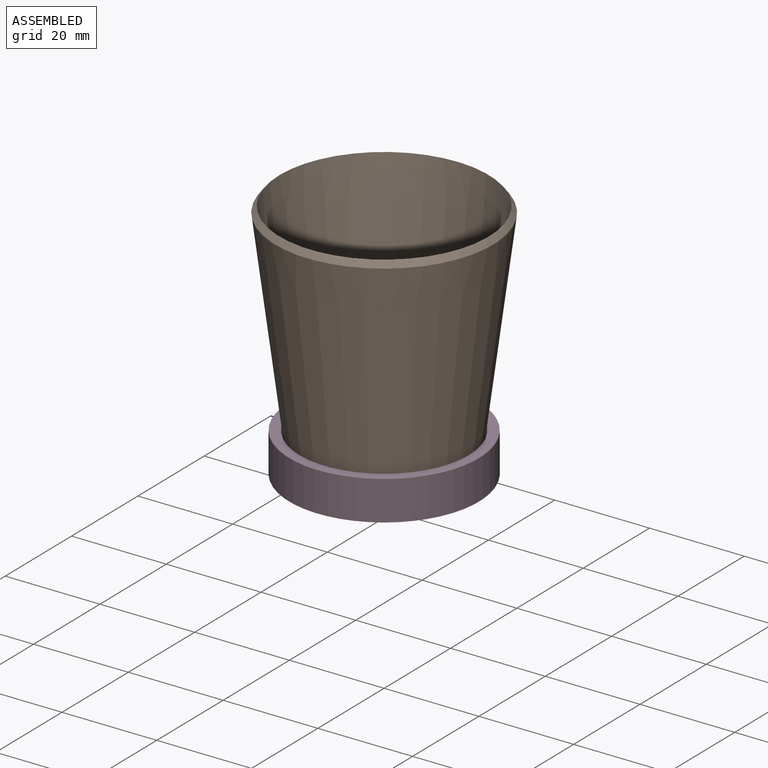
[diagram: assembled view]
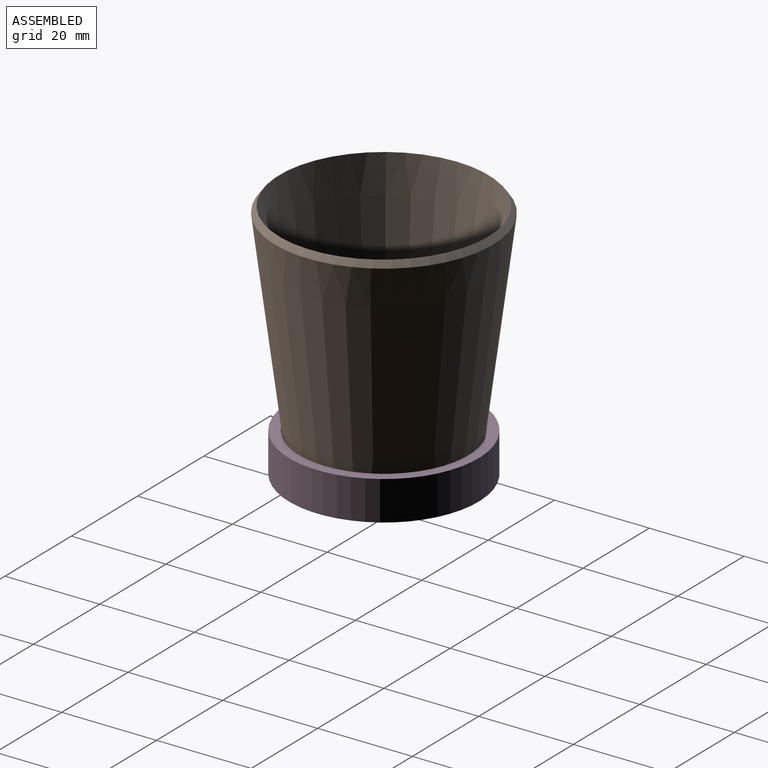
[diagram: assembled view, second angle]
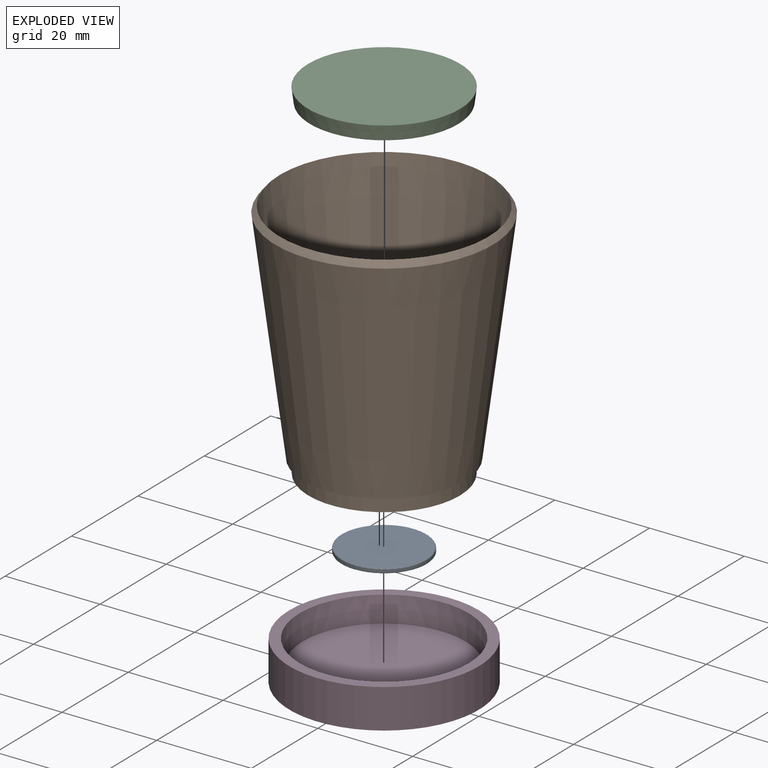
[diagram: exploded view]
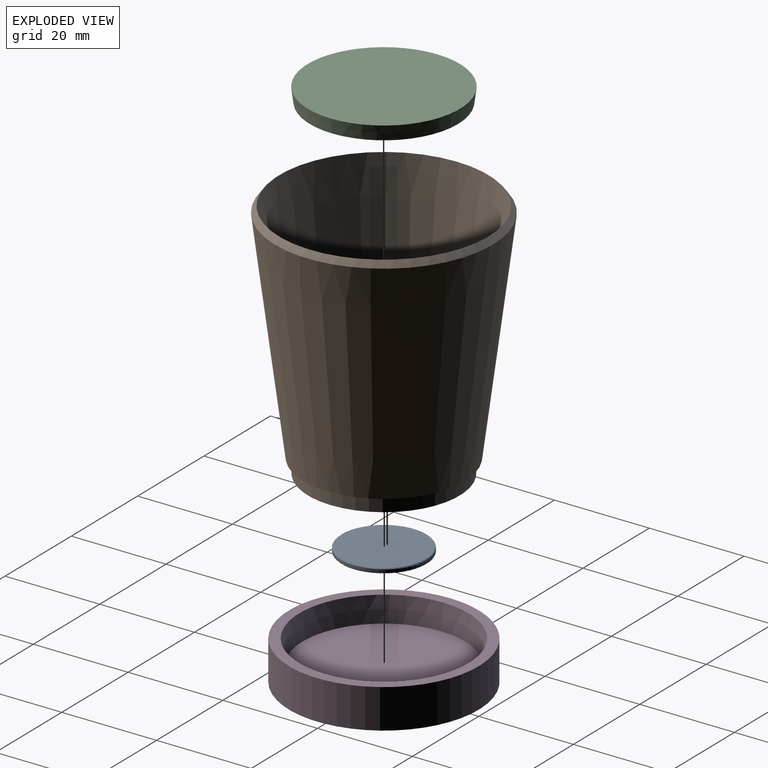
[diagram: exploded view, second angle]
ASSEMBLY  parts=4 mates=3
PART A: 5 faces, bbox 19.5x19.5x1 mm
  f0: cylinder r=9mm len=18mm, axis (0,0,-1), area 33.9mm2, adj f3,f4
  f1: plane 17.6x17.6mm, normal (0,0,1), area 243.3mm2, adj f4
  f2: plane 17.6x17.6mm, normal (0,0,-1), area 243.3mm2, adj f3
  f3: torus R=8.8mm, axis (0,0,1), area 17.6mm2, adj f0,f2
  f4: torus R=8.8mm, axis (0,0,1), area 17.6mm2, adj f0,f1
PART B: 21 faces, bbox 46x46x51 mm
  f0: plane 6x1.25mm, normal (0.5,0.86,0.13), area 6mm2, adj f1,f2,f3,f9
  f1: plane 1.8x1.62mm, normal (0,0,1), area 1.5mm2, adj f0,f2,f3,f8
  f2: plane 6x1.97mm, normal (-0.87,0.5,0), area 9mm2, adj f0,f1,f8,f9
  f3: plane 6x1.97mm, normal (0.87,-0.5,0), area 9mm2, adj f0,f1,f8,f9
  f4: plane 6x1.25mm, normal (0.5,-0.86,0.13), area 6mm2, adj f5,f6,f7,f9
  f5: plane 1.8x1.62mm, normal (0,0,1), area 1.5mm2, adj f4,f6,f7,f8
  f6: plane 6x1.97mm, normal (0.87,0.5,0), area 9mm2, adj f4,f5,f8,f9
  f7: plane 6x1.97mm, normal (-0.87,-0.5,0), area 9mm2, adj f4,f5,f8,f9
  f8: cone r=22.05mm half-angle=7.3deg, axis (0,0,1), area 5649.8mm2, adj f1,f2,f3,f5,f6,f7,f9,f16
  f9: plane 32.04x32.03mm, normal (0,0,1), area 801.7mm2, adj f0,f2,f3,f4,f6,f7,f8,f17
  f10: plane 29x29mm, normal (0,0,-1), area 660.5mm2, adj f11
  f11: cylinder r=14.5mm len=29mm, axis (0,0,-1), area 273.3mm2, adj f10,f12
  f12: plane 32x32mm, normal (0,0,-1), area 143.7mm2, adj f11,f13
  f13: cylinder r=16mm len=32mm, axis (0,0,-1), area 301.6mm2, adj f12,f14
  f14: plane 34x34mm, normal (0,0,-1), area 103.7mm2, adj f13,f15
  f15: cone r=17mm half-angle=7.3deg, axis (0,0,1), area 5920mm2, adj f14,f16
  f16: cone r=23mm half-angle=36.6deg, axis (0,0,-1), area 224.5mm2, adj f8,f15
  f17: plane 6x2.28mm, normal (0,1,0), area 9mm2, adj f8,f9,f19,f20
  f18: plane 6x2.28mm, normal (0,-1,0), area 9mm2, adj f8,f9,f19,f20
  f19: plane 1.51x1mm, normal (0,0,1), area 1.5mm2, adj f8,f17,f18,f20
  f20: plane 6x1mm, normal (-0.99,0,0.13), area 6mm2, adj f9,f17,f18,f19
PART C: 5 faces, bbox 32.1x32.1x3 mm
  f0: plane 18x18mm, normal (0,0,-1), area 254.5mm2, adj f1
  f1: cylinder r=9mm len=18mm, axis (0,0,-1), area 67.9mm2, adj f0,f2
  f2: plane 31.31x31.31mm, normal (0,0,-1), area 515.3mm2, adj f1,f3
  f3: cone r=16.05mm half-angle=7.5deg, axis (0,0,1), area 301.4mm2, adj f2,f4
  f4: plane 32.1x32.1mm, normal (0,0,1), area 809.1mm2, adj f3
PART D: 7 faces, bbox 40x40x8.3 mm
  f0: plane 34.35x34.35mm, normal (0,0,1), area 926.8mm2, adj f6
  f1: plane 32.4x32.4mm, normal (0,0,-1), area 824.5mm2, adj f2
  f2: cylinder r=16.2mm len=32.4mm, axis (0,0,-1), area 101.8mm2, adj f1,f3
  f3: plane 40x40mm, normal (0,0,-1), area 432.2mm2, adj f2,f4
  f4: cylinder r=20mm len=40mm, axis (0,0,-1), area 1043mm2, adj f3,f5
  f5: plane 40x40mm, normal (0,0,1), area 254.5mm2, adj f4,f6
  f6: cone r=17.2mm half-angle=7.5deg, axis (0,0,1), area 577.3mm2, adj f0,f5
PLACE A t=(0,0,-2.3)mm
PLACE B t=(0,0,-6)mm
PLACE C t=(0,0,-3)mm
PLACE D t=(0,0,-2.8)mm
MATE fastened A.f0 <-> C.f1  axis (0,0,1) through (0,0,-1.8)mm
MATE fastened D.f2 <-> C.f1  axis (0,0,1) through (0,0,-3)mm
MATE fastened B.f8 <-> C.f1  axis (0,0,-1) through (0,0,45)mm
